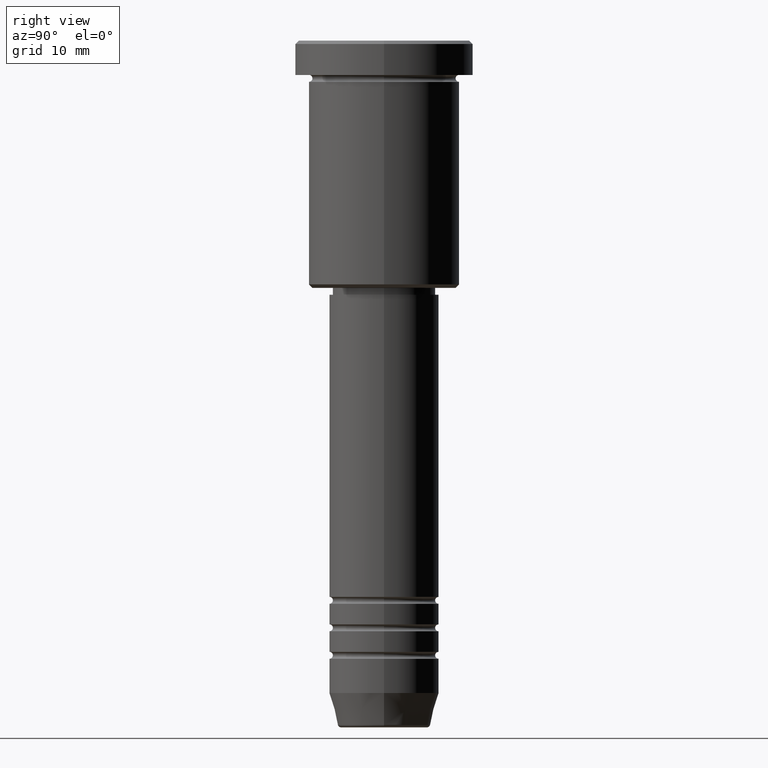
[diagram: clean part render]
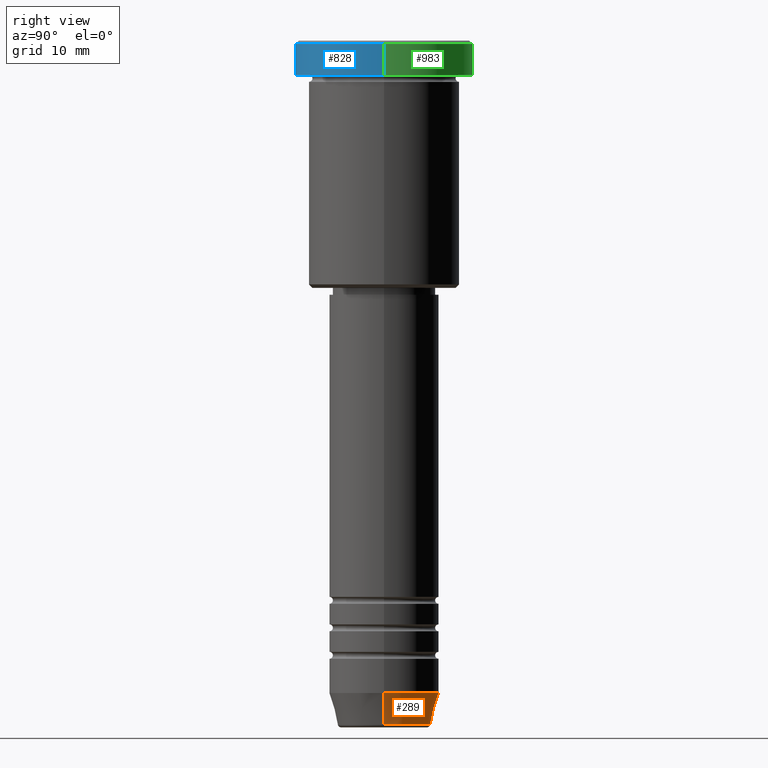
[diagram: same view with three faces highlighted in distinct colors, each labeled with its STEP entity id]
A machine part, right view with three faces highlighted in distinct colors.
Their STEP definitions:

[orange] entity #289 — the highlighted conical surface has half-angle 15 deg.
#2 = AXIS2_PLACEMENT_3D ( 'NONE', #12, #377, #732 ) ;
#3 = VECTOR ( 'NONE', #292, 1000.000000000000114 ) ;
#12 = CARTESIAN_POINT ( 'NONE',  ( 0.000000000000000000, 0.000000000000000000, -95.00000000000000000 ) ) ;
#39 = VERTEX_POINT ( 'NONE', #553 ) ;
#69 = VERTEX_POINT ( 'NONE', #204 ) ;
#151 = VECTOR ( 'NONE', #926, 1000.000000000000114 ) ;
#169 = DIRECTION ( 'NONE',  ( 1.000000000000000000, 0.000000000000000000, 0.000000000000000000 ) ) ;
#182 = EDGE_CURVE ( 'NONE', #69, #838, #222, .T. ) ;
#188 = DIRECTION ( 'NONE',  ( 1.000000000000000000, 0.000000000000000000, 0.000000000000000000 ) ) ;
#204 = CARTESIAN_POINT ( 'NONE',  ( -6.759553456999437770, 9.037619948979306213E-16, -99.62940952255127058 ) ) ;
#218 = ORIENTED_EDGE ( 'NONE', *, *, #777, .F. ) ;
#222 = LINE ( 'NONE', #308, #151 ) ;
#268 = AXIS2_PLACEMENT_3D ( 'NONE', #885, #1183, #188 ) ;
#289 = ADVANCED_FACE ( 'NONE', ( #818 ), #771, .T. ) ;
#292 = DIRECTION ( 'NONE',  ( 0.2588190451025214611, 0.000000000000000000, 0.9659258262890679791 ) ) ;
#308 = CARTESIAN_POINT ( 'NONE',  ( -8.000000000000000000, 9.797174393178825657E-16, -95.00000000000000000 ) ) ;
#377 = DIRECTION ( 'NONE',  ( -0.000000000000000000, -0.000000000000000000, 1.000000000000000000 ) ) ;
#444 = EDGE_CURVE ( 'NONE', #529, #69, #474, .T. ) ;
#473 = CARTESIAN_POINT ( 'NONE',  ( -8.000000000000000000, 9.797174393178825657E-16, -95.00000000000000000 ) ) ;
#474 = CIRCLE ( 'NONE', #268, 6.759553456999436882 ) ;
#492 = CARTESIAN_POINT ( 'NONE',  ( 6.759553456999436882, 0.000000000000000000, -99.62940952255127058 ) ) ;
#529 = VERTEX_POINT ( 'NONE', #492 ) ;
#553 = CARTESIAN_POINT ( 'NONE',  ( 8.000000000000000000, 0.000000000000000000, -95.00000000000000000 ) ) ;
#633 = CIRCLE ( 'NONE', #1169, 8.000000000000000000 ) ;
#697 = DIRECTION ( 'NONE',  ( -0.000000000000000000, -0.000000000000000000, 1.000000000000000000 ) ) ;
#732 = DIRECTION ( 'NONE',  ( 1.000000000000000000, 0.000000000000000000, 0.000000000000000000 ) ) ;
#771 = CONICAL_SURFACE ( 'NONE', #2, 8.000000000000000000, 0.2617993877991502405 ) ;
#777 = EDGE_CURVE ( 'NONE', #529, #39, #924, .T. ) ;
#804 = CARTESIAN_POINT ( 'NONE',  ( 8.000000000000000000, 0.000000000000000000, -95.00000000000000000 ) ) ;
#818 = FACE_OUTER_BOUND ( 'NONE', #1077, .T. ) ;
#838 = VERTEX_POINT ( 'NONE', #473 ) ;
#874 = CARTESIAN_POINT ( 'NONE',  ( 0.000000000000000000, 0.000000000000000000, -95.00000000000000000 ) ) ;
#885 = CARTESIAN_POINT ( 'NONE',  ( 0.000000000000000000, 0.000000000000000000, -99.62940952255127058 ) ) ;
#924 = LINE ( 'NONE', #804, #3 ) ;
#926 = DIRECTION ( 'NONE',  ( -0.2588190451025214611, 3.169619151431774186E-17, 0.9659258262890679791 ) ) ;
#981 = ORIENTED_EDGE ( 'NONE', *, *, #182, .T. ) ;
#1025 = ORIENTED_EDGE ( 'NONE', *, *, #444, .T. ) ;
#1077 = EDGE_LOOP ( 'NONE', ( #1025, #981, #1105, #218 ) ) ;
#1105 = ORIENTED_EDGE ( 'NONE', *, *, #1145, .F. ) ;
#1145 = EDGE_CURVE ( 'NONE', #39, #838, #633, .T. ) ;
#1169 = AXIS2_PLACEMENT_3D ( 'NONE', #874, #697, #169 ) ;
#1183 = DIRECTION ( 'NONE',  ( -0.000000000000000000, -0.000000000000000000, 1.000000000000000000 ) ) ;

[blue] entity #828 — the highlighted cylindrical surface (partial cylindrical patch) has radius 13 mm, axis along (-0, -0, 1).
#20 = DIRECTION ( 'NONE',  ( -0.000000000000000000, -0.000000000000000000, 1.000000000000000000 ) ) ;
#58 = EDGE_CURVE ( 'NONE', #458, #1136, #808, .T. ) ;
#83 = EDGE_LOOP ( 'NONE', ( #240, #379, #350, #1019 ) ) ;
#95 = EDGE_CURVE ( 'NONE', #990, #1136, #1046, .T. ) ;
#120 = VECTOR ( 'NONE', #868, 1000.000000000000000 ) ;
#152 = CARTESIAN_POINT ( 'NONE',  ( -13.00000000000000000, 1.592040838891559095E-15, 0.000000000000000000 ) ) ;
#159 = LINE ( 'NONE', #1061, #316 ) ;
#203 = CYLINDRICAL_SURFACE ( 'NONE', #1087, 13.00000000000000000 ) ;
#236 = EDGE_CURVE ( 'NONE', #990, #706, #688, .T. ) ;
#240 = ORIENTED_EDGE ( 'NONE', *, *, #95, .F. ) ;
#286 = CARTESIAN_POINT ( 'NONE',  ( 0.000000000000000000, 0.000000000000000000, 0.000000000000000000 ) ) ;
#316 = VECTOR ( 'NONE', #494, 1000.000000000000000 ) ;
#329 = AXIS2_PLACEMENT_3D ( 'NONE', #801, #1095, #386 ) ;
#350 = ORIENTED_EDGE ( 'NONE', *, *, #1096, .T. ) ;
#379 = ORIENTED_EDGE ( 'NONE', *, *, #236, .T. ) ;
#386 = DIRECTION ( 'NONE',  ( 1.000000000000000000, 0.000000000000000000, 0.000000000000000000 ) ) ;
#458 = VERTEX_POINT ( 'NONE', #730 ) ;
#494 = DIRECTION ( 'NONE',  ( -0.000000000000000000, -0.000000000000000000, 1.000000000000000000 ) ) ;
#526 = CARTESIAN_POINT ( 'NONE',  ( 13.00000000000000000, 0.000000000000000000, -5.000000000000000000 ) ) ;
#566 = DIRECTION ( 'NONE',  ( 1.000000000000000000, 0.000000000000000000, 0.000000000000000000 ) ) ;
#654 = FACE_OUTER_BOUND ( 'NONE', #83, .T. ) ;
#688 = CIRCLE ( 'NONE', #744, 13.00000000000000000 ) ;
#706 = VERTEX_POINT ( 'NONE', #526 ) ;
#730 = CARTESIAN_POINT ( 'NONE',  ( 13.00000000000000000, 0.000000000000000000, -0.5000000000000073275 ) ) ;
#744 = AXIS2_PLACEMENT_3D ( 'NONE', #840, #1033, #861 ) ;
#751 = CARTESIAN_POINT ( 'NONE',  ( -13.00000000000000000, 1.592040838891559095E-15, -5.000000000000000000 ) ) ;
#801 = CARTESIAN_POINT ( 'NONE',  ( 0.000000000000000000, 0.000000000000000000, -0.5000000000000073275 ) ) ;
#808 = CIRCLE ( 'NONE', #329, 13.00000000000000000 ) ;
#828 = ADVANCED_FACE ( 'NONE', ( #654 ), #203, .T. ) ;
#840 = CARTESIAN_POINT ( 'NONE',  ( 0.000000000000000000, 0.000000000000000000, -5.000000000000000000 ) ) ;
#861 = DIRECTION ( 'NONE',  ( 1.000000000000000000, 0.000000000000000000, 0.000000000000000000 ) ) ;
#868 = DIRECTION ( 'NONE',  ( -0.000000000000000000, -0.000000000000000000, 1.000000000000000000 ) ) ;
#990 = VERTEX_POINT ( 'NONE', #751 ) ;
#1019 = ORIENTED_EDGE ( 'NONE', *, *, #58, .T. ) ;
#1033 = DIRECTION ( 'NONE',  ( -0.000000000000000000, -0.000000000000000000, 1.000000000000000000 ) ) ;
#1046 = LINE ( 'NONE', #152, #120 ) ;
#1054 = CARTESIAN_POINT ( 'NONE',  ( -13.00000000000000000, 1.592040838891559095E-15, -0.5000000000000073275 ) ) ;
#1061 = CARTESIAN_POINT ( 'NONE',  ( 13.00000000000000000, 0.000000000000000000, 0.000000000000000000 ) ) ;
#1087 = AXIS2_PLACEMENT_3D ( 'NONE', #286, #20, #566 ) ;
#1095 = DIRECTION ( 'NONE',  ( 0.000000000000000000, 0.000000000000000000, -1.000000000000000000 ) ) ;
#1096 = EDGE_CURVE ( 'NONE', #706, #458, #159, .T. ) ;
#1136 = VERTEX_POINT ( 'NONE', #1054 ) ;

[green] entity #983 — the highlighted cylindrical surface (partial cylindrical patch) has radius 13 mm, axis along (-0, -0, 1).
#25 = ORIENTED_EDGE ( 'NONE', *, *, #95, .T. ) ;
#95 = EDGE_CURVE ( 'NONE', #990, #1136, #1046, .T. ) ;
#120 = VECTOR ( 'NONE', #868, 1000.000000000000000 ) ;
#152 = CARTESIAN_POINT ( 'NONE',  ( -13.00000000000000000, 1.592040838891559095E-15, 0.000000000000000000 ) ) ;
#159 = LINE ( 'NONE', #1061, #316 ) ;
#184 = EDGE_CURVE ( 'NONE', #1136, #458, #433, .T. ) ;
#194 = EDGE_CURVE ( 'NONE', #706, #990, #294, .T. ) ;
#294 = CIRCLE ( 'NONE', #809, 13.00000000000000000 ) ;
#316 = VECTOR ( 'NONE', #494, 1000.000000000000000 ) ;
#319 = DIRECTION ( 'NONE',  ( -0.000000000000000000, -0.000000000000000000, 1.000000000000000000 ) ) ;
#320 = DIRECTION ( 'NONE',  ( 0.000000000000000000, 0.000000000000000000, -1.000000000000000000 ) ) ;
#339 = DIRECTION ( 'NONE',  ( -0.000000000000000000, -0.000000000000000000, 1.000000000000000000 ) ) ;
#404 = FACE_OUTER_BOUND ( 'NONE', #568, .T. ) ;
#433 = CIRCLE ( 'NONE', #455, 13.00000000000000000 ) ;
#437 = AXIS2_PLACEMENT_3D ( 'NONE', #1130, #319, #493 ) ;
#455 = AXIS2_PLACEMENT_3D ( 'NONE', #478, #320, #950 ) ;
#458 = VERTEX_POINT ( 'NONE', #730 ) ;
#478 = CARTESIAN_POINT ( 'NONE',  ( 0.000000000000000000, 0.000000000000000000, -0.5000000000000073275 ) ) ;
#493 = DIRECTION ( 'NONE',  ( 1.000000000000000000, 0.000000000000000000, 0.000000000000000000 ) ) ;
#494 = DIRECTION ( 'NONE',  ( -0.000000000000000000, -0.000000000000000000, 1.000000000000000000 ) ) ;
#526 = CARTESIAN_POINT ( 'NONE',  ( 13.00000000000000000, 0.000000000000000000, -5.000000000000000000 ) ) ;
#538 = ORIENTED_EDGE ( 'NONE', *, *, #194, .T. ) ;
#568 = EDGE_LOOP ( 'NONE', ( #538, #25, #613, #762 ) ) ;
#613 = ORIENTED_EDGE ( 'NONE', *, *, #184, .T. ) ;
#670 = CARTESIAN_POINT ( 'NONE',  ( 0.000000000000000000, 0.000000000000000000, -5.000000000000000000 ) ) ;
#706 = VERTEX_POINT ( 'NONE', #526 ) ;
#730 = CARTESIAN_POINT ( 'NONE',  ( 13.00000000000000000, 0.000000000000000000, -0.5000000000000073275 ) ) ;
#751 = CARTESIAN_POINT ( 'NONE',  ( -13.00000000000000000, 1.592040838891559095E-15, -5.000000000000000000 ) ) ;
#755 = DIRECTION ( 'NONE',  ( 1.000000000000000000, 0.000000000000000000, 0.000000000000000000 ) ) ;
#756 = CYLINDRICAL_SURFACE ( 'NONE', #437, 13.00000000000000000 ) ;
#762 = ORIENTED_EDGE ( 'NONE', *, *, #1096, .F. ) ;
#809 = AXIS2_PLACEMENT_3D ( 'NONE', #670, #339, #755 ) ;
#868 = DIRECTION ( 'NONE',  ( -0.000000000000000000, -0.000000000000000000, 1.000000000000000000 ) ) ;
#950 = DIRECTION ( 'NONE',  ( 1.000000000000000000, 0.000000000000000000, 0.000000000000000000 ) ) ;
#983 = ADVANCED_FACE ( 'NONE', ( #404 ), #756, .T. ) ;
#990 = VERTEX_POINT ( 'NONE', #751 ) ;
#1046 = LINE ( 'NONE', #152, #120 ) ;
#1054 = CARTESIAN_POINT ( 'NONE',  ( -13.00000000000000000, 1.592040838891559095E-15, -0.5000000000000073275 ) ) ;
#1061 = CARTESIAN_POINT ( 'NONE',  ( 13.00000000000000000, 0.000000000000000000, 0.000000000000000000 ) ) ;
#1096 = EDGE_CURVE ( 'NONE', #706, #458, #159, .T. ) ;
#1130 = CARTESIAN_POINT ( 'NONE',  ( 0.000000000000000000, 0.000000000000000000, 0.000000000000000000 ) ) ;
#1136 = VERTEX_POINT ( 'NONE', #1054 ) ;